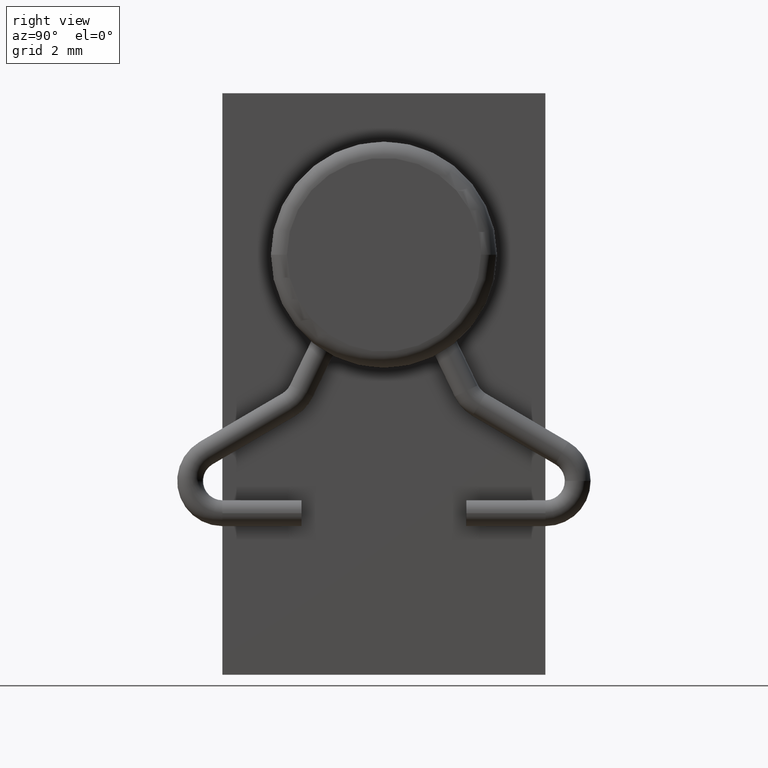
[diagram: clean part render]
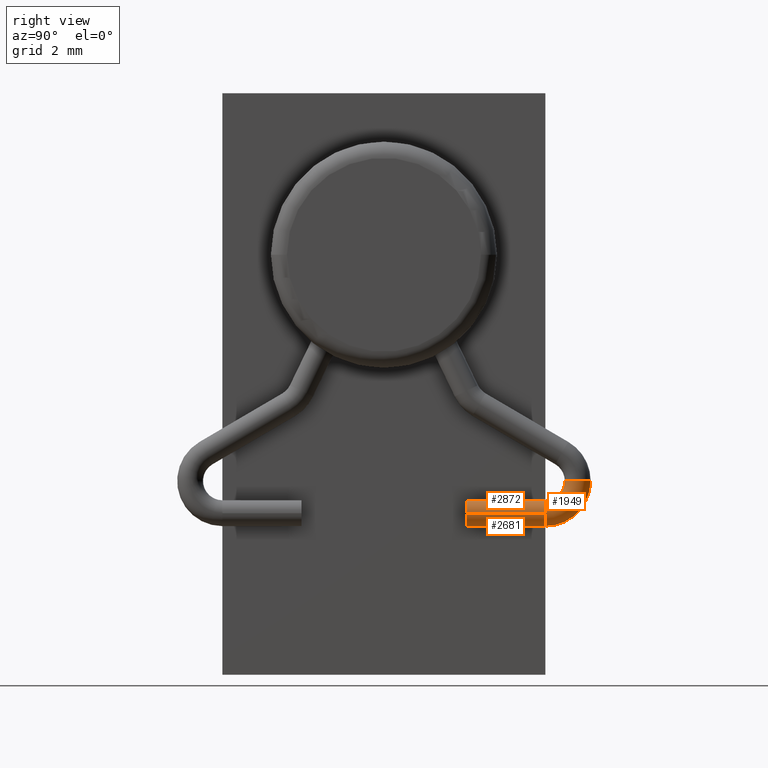
[diagram: same view with one multi-face feature highlighted, each face labeled with its STEP entity id]
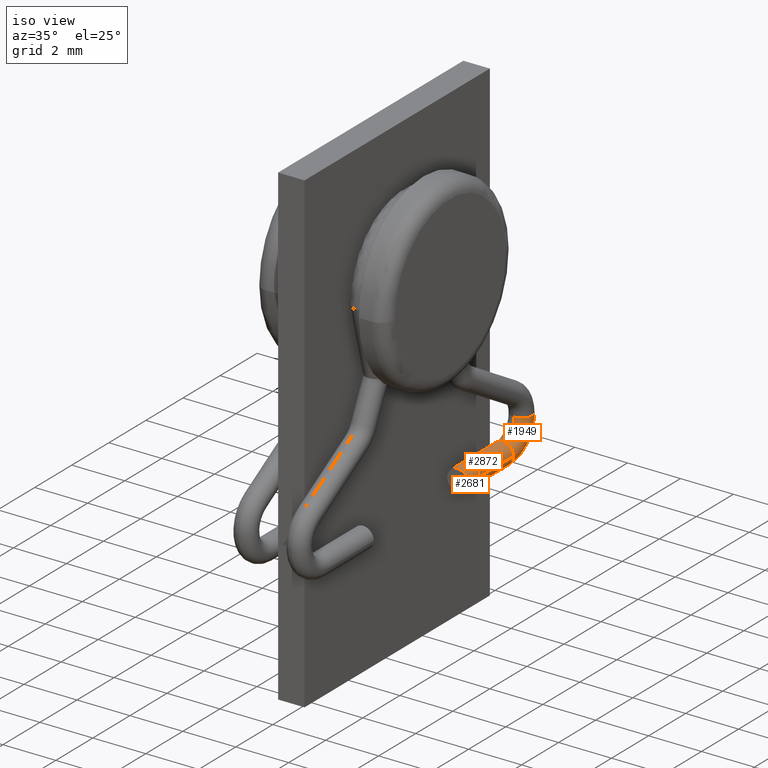
[diagram: same view with one multi-face feature highlighted, each face labeled with its STEP entity id]
A machine part, right view. The highlighted faces form ONE feature: a constant-radius fillet chain: 3 tangent blend faces with common blend radius 0.4 mm. The faces share edges in the B-rep.
A second angle (iso view) of the same feature is appended — it is thin or edge-on in the first view.
Their STEP definitions:
[1] entity #2872 (Cylinder):
#135 = DIRECTION ( 'NONE',  ( 5.310377987684109770E-16, -1.000000000000000000, 0.000000000000000000 ) ) ;
#151 = DIRECTION ( 'NONE',  ( 1.000000000000000000, 0.000000000000000000, 0.000000000000000000 ) ) ;
#256 = CARTESIAN_POINT ( 'NONE',  ( 0.5999999999999985345, 4.999999999999990230, 4.999999999999999112 ) ) ;
#276 = CIRCLE ( 'NONE', #2059, 0.3999999999999999667 ) ;
#277 = AXIS2_PLACEMENT_3D ( 'NONE', #2868, #1623, #644 ) ;
#379 = ORIENTED_EDGE ( 'NONE', *, *, #2529, .T. ) ;
#402 = EDGE_LOOP ( 'NONE', ( #435, #1087, #379, #1051, #3127 ) ) ;
#409 = DIRECTION ( 'NONE',  ( 5.310377987684109770E-16, -1.000000000000000000, 0.000000000000000000 ) ) ;
#411 = DIRECTION ( 'NONE',  ( 1.000000000000000000, 0.000000000000000000, 0.000000000000000000 ) ) ;
#426 = CIRCLE ( 'NONE', #946, 0.3999999999999999667 ) ;
#435 = ORIENTED_EDGE ( 'NONE', *, *, #985, .F. ) ;
#476 = DIRECTION ( 'NONE',  ( -4.425314989736761264E-16, 1.000000000000000000, -0.000000000000000000 ) ) ;
#486 = EDGE_CURVE ( 'NONE', #1467, #2127, #2406, .T. ) ;
#636 = CARTESIAN_POINT ( 'NONE',  ( 0.9999999999999995559, 2.549999999999995381, 4.999999999999999112 ) ) ;
#644 = DIRECTION ( 'NONE',  ( -1.000000000000000000, 0.000000000000000000, 0.000000000000000000 ) ) ;
#676 = VECTOR ( 'NONE', #852, 1000.000000000000000 ) ;
#679 = EDGE_CURVE ( 'NONE', #1220, #2013, #2435, .T. ) ;
#831 = VERTEX_POINT ( 'NONE', #1571 ) ;
#847 = DIRECTION ( 'NONE',  ( 1.000000000000000000, 0.000000000000000000, 0.000000000000000000 ) ) ;
#852 = DIRECTION ( 'NONE',  ( -4.425314989736761264E-16, 1.000000000000000000, -0.000000000000000000 ) ) ;
#898 = CIRCLE ( 'NONE', #2946, 0.3999999999999999667 ) ;
#946 = AXIS2_PLACEMENT_3D ( 'NONE', #2308, #135, #151 ) ;
#978 = CARTESIAN_POINT ( 'NONE',  ( 1.399999999999999467, 2.549999999999995381, 4.999999999999999112 ) ) ;
#985 = EDGE_CURVE ( 'NONE', #1220, #1467, #898, .T. ) ;
#1051 = ORIENTED_EDGE ( 'NONE', *, *, #2029, .T. ) ;
#1087 = ORIENTED_EDGE ( 'NONE', *, *, #679, .T. ) ;
#1167 = DIRECTION ( 'NONE',  ( 5.310377987684109770E-16, -1.000000000000000000, 0.000000000000000000 ) ) ;
#1220 = VERTEX_POINT ( 'NONE', #978 ) ;
#1384 = CARTESIAN_POINT ( 'NONE',  ( 0.5999999999999996447, 2.549999999999995381, 4.999999999999999112 ) ) ;
#1467 = VERTEX_POINT ( 'NONE', #1384 ) ;
#1571 = CARTESIAN_POINT ( 'NONE',  ( 0.9999999999999986677, 4.999999999999990230, 5.399999999999999467 ) ) ;
#1598 = CARTESIAN_POINT ( 'NONE',  ( 0.9999999999999985567, 4.999999999999990230, 4.999999999999999112 ) ) ;
#1623 = DIRECTION ( 'NONE',  ( -4.425314989736761757E-16, 1.000000000000000000, -0.000000000000000000 ) ) ;
#1875 = FACE_OUTER_BOUND ( 'NONE', #402, .T. ) ;
#2013 = VERTEX_POINT ( 'NONE', #2862 ) ;
#2029 = EDGE_CURVE ( 'NONE', #831, #2127, #426, .T. ) ;
#2059 = AXIS2_PLACEMENT_3D ( 'NONE', #1598, #1167, #411 ) ;
#2127 = VERTEX_POINT ( 'NONE', #256 ) ;
#2308 = CARTESIAN_POINT ( 'NONE',  ( 0.9999999999999985567, 4.999999999999990230, 4.999999999999999112 ) ) ;
#2406 = LINE ( 'NONE', #2657, #2661 ) ;
#2435 = LINE ( 'NONE', #2797, #676 ) ;
#2529 = EDGE_CURVE ( 'NONE', #2013, #831, #276, .T. ) ;
#2657 = CARTESIAN_POINT ( 'NONE',  ( 0.5999999999999996447, 2.549999999999995381, 4.999999999999999112 ) ) ;
#2661 = VECTOR ( 'NONE', #476, 1000.000000000000000 ) ;
#2797 = CARTESIAN_POINT ( 'NONE',  ( 1.399999999999999467, 2.549999999999995381, 4.999999999999999112 ) ) ;
#2862 = CARTESIAN_POINT ( 'NONE',  ( 1.399999999999998579, 4.999999999999990230, 4.999999999999999112 ) ) ;
#2868 = CARTESIAN_POINT ( 'NONE',  ( 0.9999999999999995559, 2.549999999999995381, 4.999999999999999112 ) ) ;
#2872 = ADVANCED_FACE ( 'NONE', ( #1875 ), #3075, .T. ) ;
#2946 = AXIS2_PLACEMENT_3D ( 'NONE', #636, #409, #847 ) ;
#3075 = CYLINDRICAL_SURFACE ( 'NONE', #277, 0.3999999999999999667 ) ;
#3127 = ORIENTED_EDGE ( 'NONE', *, *, #486, .F. ) ;
[2] entity #1949 (Torus):
#62 = DIRECTION ( 'NONE',  ( 1.000000000000000000, 3.794707603699264533E-16, -0.000000000000000000 ) ) ;
#188 = DIRECTION ( 'NONE',  ( -3.794707603699264533E-16, 1.000000000000000000, 0.000000000000000000 ) ) ;
#211 = CARTESIAN_POINT ( 'NONE',  ( 0.9999999999999986677, 5.599999999999995204, 6.000000000000000000 ) ) ;
#276 = CIRCLE ( 'NONE', #2059, 0.3999999999999999667 ) ;
#314 = VERTEX_POINT ( 'NONE', #1779 ) ;
#333 = ORIENTED_EDGE ( 'NONE', *, *, #1718, .F. ) ;
#411 = DIRECTION ( 'NONE',  ( 1.000000000000000000, 0.000000000000000000, 0.000000000000000000 ) ) ;
#417 = DIRECTION ( 'NONE',  ( 1.000000000000000000, 3.794707603699264533E-16, -0.000000000000000000 ) ) ;
#471 = TOROIDAL_SURFACE ( 'NONE', #1549, 1.000000000000000000, 0.3999999999999999667 ) ;
#524 = CIRCLE ( 'NONE', #2311, 1.400000000000000133 ) ;
#530 = CARTESIAN_POINT ( 'NONE',  ( 0.9999999999999986677, 4.999999999999995559, 6.000000000000000000 ) ) ;
#592 = CARTESIAN_POINT ( 'NONE',  ( 0.9999999999999983347, 5.999999999999995559, 6.000000000000000000 ) ) ;
#608 = DIRECTION ( 'NONE',  ( -0.000000000000000000, 0.000000000000000000, -1.000000000000000000 ) ) ;
#649 = CARTESIAN_POINT ( 'NONE',  ( 0.9999999999999983347, 6.399999999999995914, 6.000000000000000000 ) ) ;
#739 = CIRCLE ( 'NONE', #2509, 0.5999999999999998668 ) ;
#775 = VERTEX_POINT ( 'NONE', #649 ) ;
#783 = DIRECTION ( 'NONE',  ( 5.310377987684109770E-16, -1.000000000000000000, 0.000000000000000000 ) ) ;
#831 = VERTEX_POINT ( 'NONE', #1571 ) ;
#1167 = DIRECTION ( 'NONE',  ( 5.310377987684109770E-16, -1.000000000000000000, 0.000000000000000000 ) ) ;
#1200 = CIRCLE ( 'NONE', #2413, 0.3999999999999999667 ) ;
#1361 = ORIENTED_EDGE ( 'NONE', *, *, #2819, .T. ) ;
#1549 = AXIS2_PLACEMENT_3D ( 'NONE', #2815, #417, #188 ) ;
#1571 = CARTESIAN_POINT ( 'NONE',  ( 0.9999999999999986677, 4.999999999999990230, 5.399999999999999467 ) ) ;
#1598 = CARTESIAN_POINT ( 'NONE',  ( 0.9999999999999985567, 4.999999999999990230, 4.999999999999999112 ) ) ;
#1718 = EDGE_CURVE ( 'NONE', #314, #2013, #3007, .T. ) ;
#1725 = EDGE_LOOP ( 'NONE', ( #333, #2028, #1361, #2293, #2397 ) ) ;
#1779 = CARTESIAN_POINT ( 'NONE',  ( 0.9999999999999986677, 4.999999999999990230, 4.599999999999999645 ) ) ;
#1781 = CARTESIAN_POINT ( 'NONE',  ( 0.9999999999999986677, 4.999999999999995559, 6.000000000000000000 ) ) ;
#1801 = DIRECTION ( 'NONE',  ( -3.614007241618348771E-16, 1.000000000000000000, 0.000000000000000000 ) ) ;
#1872 = FACE_OUTER_BOUND ( 'NONE', #1725, .T. ) ;
#1949 = ADVANCED_FACE ( 'NONE', ( #1872 ), #471, .T. ) ;
#1990 = DIRECTION ( 'NONE',  ( 1.000000000000000000, 0.000000000000000000, 0.000000000000000000 ) ) ;
#2013 = VERTEX_POINT ( 'NONE', #2862 ) ;
#2028 = ORIENTED_EDGE ( 'NONE', *, *, #3073, .T. ) ;
#2059 = AXIS2_PLACEMENT_3D ( 'NONE', #1598, #1167, #411 ) ;
#2064 = DIRECTION ( 'NONE',  ( -1.000000000000000000, 0.000000000000000000, 0.000000000000000000 ) ) ;
#2293 = ORIENTED_EDGE ( 'NONE', *, *, #2380, .F. ) ;
#2311 = AXIS2_PLACEMENT_3D ( 'NONE', #530, #62, #2974 ) ;
#2380 = EDGE_CURVE ( 'NONE', #831, #2617, #739, .T. ) ;
#2397 = ORIENTED_EDGE ( 'NONE', *, *, #2529, .F. ) ;
#2413 = AXIS2_PLACEMENT_3D ( 'NONE', #592, #608, #2064 ) ;
#2482 = CARTESIAN_POINT ( 'NONE',  ( 0.9999999999999985567, 4.999999999999990230, 4.999999999999999112 ) ) ;
#2509 = AXIS2_PLACEMENT_3D ( 'NONE', #1781, #2963, #1801 ) ;
#2529 = EDGE_CURVE ( 'NONE', #2013, #831, #276, .T. ) ;
#2617 = VERTEX_POINT ( 'NONE', #211 ) ;
#2703 = AXIS2_PLACEMENT_3D ( 'NONE', #2482, #783, #1990 ) ;
#2815 = CARTESIAN_POINT ( 'NONE',  ( 0.9999999999999986677, 4.999999999999995559, 6.000000000000000000 ) ) ;
#2819 = EDGE_CURVE ( 'NONE', #775, #2617, #1200, .T. ) ;
#2862 = CARTESIAN_POINT ( 'NONE',  ( 1.399999999999998579, 4.999999999999990230, 4.999999999999999112 ) ) ;
#2963 = DIRECTION ( 'NONE',  ( 1.000000000000000000, 3.794707603699264533E-16, -0.000000000000000000 ) ) ;
#2974 = DIRECTION ( 'NONE',  ( -3.097720492815726673E-16, 1.000000000000000000, 0.000000000000000000 ) ) ;
#3007 = CIRCLE ( 'NONE', #2703, 0.3999999999999999667 ) ;
#3073 = EDGE_CURVE ( 'NONE', #314, #775, #524, .T. ) ;
[3] entity #2681 (Cylinder):
#256 = CARTESIAN_POINT ( 'NONE',  ( 0.5999999999999985345, 4.999999999999990230, 4.999999999999999112 ) ) ;
#314 = VERTEX_POINT ( 'NONE', #1779 ) ;
#351 = CARTESIAN_POINT ( 'NONE',  ( 0.9999999999999985567, 4.999999999999990230, 4.999999999999999112 ) ) ;
#391 = DIRECTION ( 'NONE',  ( -1.000000000000000000, 0.000000000000000000, 0.000000000000000000 ) ) ;
#418 = ORIENTED_EDGE ( 'NONE', *, *, #1705, .T. ) ;
#476 = DIRECTION ( 'NONE',  ( -4.425314989736761264E-16, 1.000000000000000000, -0.000000000000000000 ) ) ;
#486 = EDGE_CURVE ( 'NONE', #1467, #2127, #2406, .T. ) ;
#676 = VECTOR ( 'NONE', #852, 1000.000000000000000 ) ;
#679 = EDGE_CURVE ( 'NONE', #1220, #2013, #2435, .T. ) ;
#783 = DIRECTION ( 'NONE',  ( 5.310377987684109770E-16, -1.000000000000000000, 0.000000000000000000 ) ) ;
#852 = DIRECTION ( 'NONE',  ( -4.425314989736761264E-16, 1.000000000000000000, -0.000000000000000000 ) ) ;
#978 = CARTESIAN_POINT ( 'NONE',  ( 1.399999999999999467, 2.549999999999995381, 4.999999999999999112 ) ) ;
#1220 = VERTEX_POINT ( 'NONE', #978 ) ;
#1349 = AXIS2_PLACEMENT_3D ( 'NONE', #351, #2039, #2747 ) ;
#1357 = FACE_OUTER_BOUND ( 'NONE', #1651, .T. ) ;
#1384 = CARTESIAN_POINT ( 'NONE',  ( 0.5999999999999996447, 2.549999999999995381, 4.999999999999999112 ) ) ;
#1467 = VERTEX_POINT ( 'NONE', #1384 ) ;
#1651 = EDGE_LOOP ( 'NONE', ( #2668, #2190, #3104, #418, #2860 ) ) ;
#1672 = DIRECTION ( 'NONE',  ( 1.000000000000000000, 0.000000000000000000, 0.000000000000000000 ) ) ;
#1705 = EDGE_CURVE ( 'NONE', #2127, #314, #2053, .T. ) ;
#1718 = EDGE_CURVE ( 'NONE', #314, #2013, #3007, .T. ) ;
#1779 = CARTESIAN_POINT ( 'NONE',  ( 0.9999999999999986677, 4.999999999999990230, 4.599999999999999645 ) ) ;
#1863 = DIRECTION ( 'NONE',  ( -4.425314989736761757E-16, 1.000000000000000000, -0.000000000000000000 ) ) ;
#1930 = EDGE_CURVE ( 'NONE', #1467, #1220, #2409, .T. ) ;
#1990 = DIRECTION ( 'NONE',  ( 1.000000000000000000, 0.000000000000000000, 0.000000000000000000 ) ) ;
#2013 = VERTEX_POINT ( 'NONE', #2862 ) ;
#2039 = DIRECTION ( 'NONE',  ( 5.310377987684109770E-16, -1.000000000000000000, 0.000000000000000000 ) ) ;
#2053 = CIRCLE ( 'NONE', #1349, 0.3999999999999999667 ) ;
#2076 = DIRECTION ( 'NONE',  ( 5.310377987684109770E-16, -1.000000000000000000, 0.000000000000000000 ) ) ;
#2127 = VERTEX_POINT ( 'NONE', #256 ) ;
#2190 = ORIENTED_EDGE ( 'NONE', *, *, #1930, .F. ) ;
#2203 = AXIS2_PLACEMENT_3D ( 'NONE', #3035, #2076, #1672 ) ;
#2406 = LINE ( 'NONE', #2657, #2661 ) ;
#2409 = CIRCLE ( 'NONE', #2203, 0.3999999999999999667 ) ;
#2435 = LINE ( 'NONE', #2797, #676 ) ;
#2482 = CARTESIAN_POINT ( 'NONE',  ( 0.9999999999999985567, 4.999999999999990230, 4.999999999999999112 ) ) ;
#2657 = CARTESIAN_POINT ( 'NONE',  ( 0.5999999999999996447, 2.549999999999995381, 4.999999999999999112 ) ) ;
#2661 = VECTOR ( 'NONE', #476, 1000.000000000000000 ) ;
#2668 = ORIENTED_EDGE ( 'NONE', *, *, #679, .F. ) ;
#2681 = ADVANCED_FACE ( 'NONE', ( #1357 ), #3026, .T. ) ;
#2703 = AXIS2_PLACEMENT_3D ( 'NONE', #2482, #783, #1990 ) ;
#2747 = DIRECTION ( 'NONE',  ( 1.000000000000000000, 0.000000000000000000, 0.000000000000000000 ) ) ;
#2757 = CARTESIAN_POINT ( 'NONE',  ( 0.9999999999999995559, 2.549999999999995381, 4.999999999999999112 ) ) ;
#2797 = CARTESIAN_POINT ( 'NONE',  ( 1.399999999999999467, 2.549999999999995381, 4.999999999999999112 ) ) ;
#2816 = AXIS2_PLACEMENT_3D ( 'NONE', #2757, #1863, #391 ) ;
#2860 = ORIENTED_EDGE ( 'NONE', *, *, #1718, .T. ) ;
#2862 = CARTESIAN_POINT ( 'NONE',  ( 1.399999999999998579, 4.999999999999990230, 4.999999999999999112 ) ) ;
#3007 = CIRCLE ( 'NONE', #2703, 0.3999999999999999667 ) ;
#3026 = CYLINDRICAL_SURFACE ( 'NONE', #2816, 0.3999999999999999667 ) ;
#3035 = CARTESIAN_POINT ( 'NONE',  ( 0.9999999999999995559, 2.549999999999995381, 4.999999999999999112 ) ) ;
#3104 = ORIENTED_EDGE ( 'NONE', *, *, #486, .T. ) ;